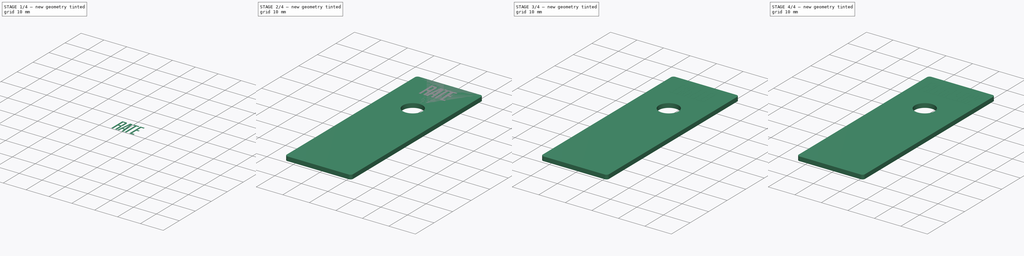
[diagram: build sequence overview — one tinted view per stage of 4, left to right]
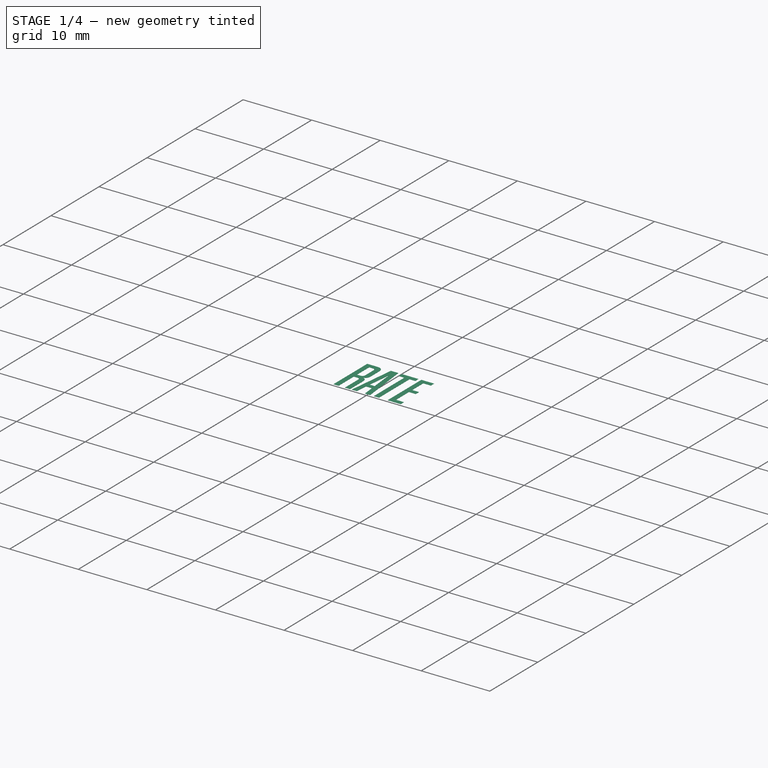
[diagram: stage 1 of 4 — iso view after this stage's code; geometry added in this stage tinted green]
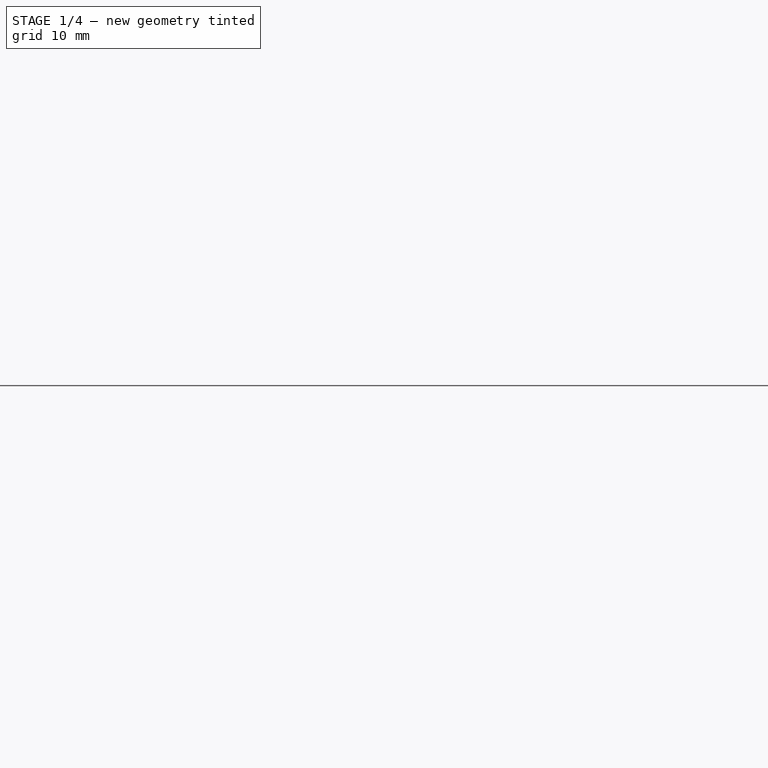
[diagram: stage 1 of 4 — front view after this stage's code; geometry added in this stage tinted green]
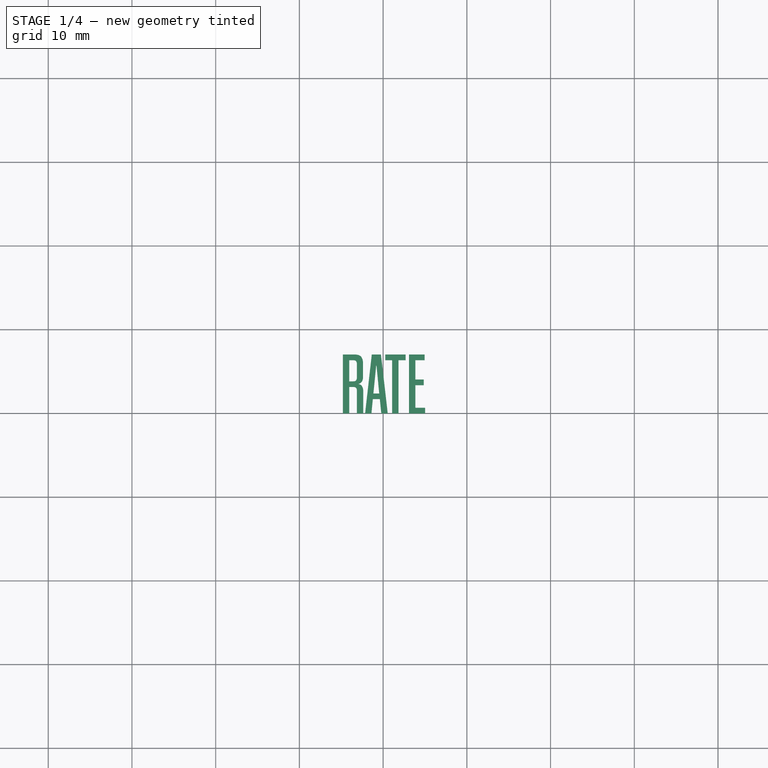
[diagram: stage 1 of 4 — top view after this stage's code; geometry added in this stage tinted green]
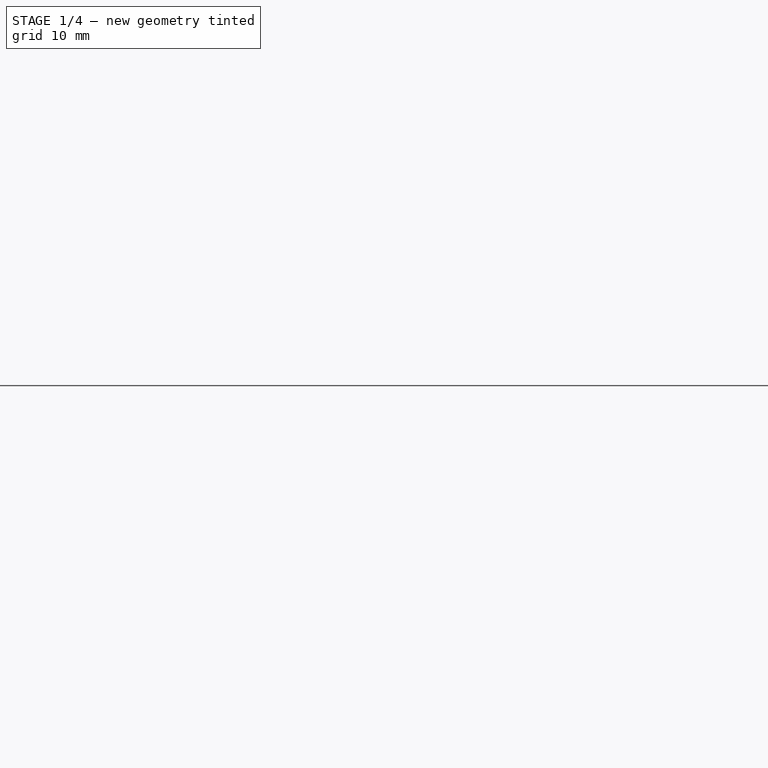
[diagram: stage 1 of 4 — right view after this stage's code; geometry added in this stage tinted green]
FCSTD DOCUMENT  (FreeCAD 0.18R16131 (Git))
Label: #XXX-XXX Potentiometer Label PCB
License: All rights reserved
LicenseURL: http://en.wikipedia.org/wiki/All_rights_reserved
objects: Sketcher::SketchObject×3, PartDesign::Pad×3, Part::Part2DObjectPython×3, Part::Extrusion×3, Part::MultiFuse×3
note: 18 computed .brp shape members not serialized (recipe doc carries the construction recipe); baked Part::Feature solids carry a one-line shape summary decoded from their .brp

FEATURE [Sketcher::SketchObject] Sketch002
  MapMode = 5
  sketch-geometry (9):
    g0: LineSegment StartX=-11.5 StartY=20 StartZ=0 EndX=11.5 EndY=20 EndZ=0
    g1: LineSegment StartX=12.5 StartY=19 StartZ=0 EndX=12.5 EndY=-50 EndZ=0
    g2: LineSegment StartX=11.5 StartY=-51 StartZ=0 EndX=-11.5 EndY=-51 EndZ=0
    g3: LineSegment StartX=-12.5 StartY=-50 StartZ=0 EndX=-12.5 EndY=19 EndZ=0
    g4: ArcOfCircle CenterX=-11.5 CenterY=19 CenterZ=0 NormalX=0 NormalY=0 NormalZ=1 AngleXU=0 Radius=1 StartAngle=1.5708 EndAngle=3.14159
    g5: ArcOfCircle CenterX=11.5 CenterY=19 CenterZ=0 NormalX=0 NormalY=0 NormalZ=1 AngleXU=0 Radius=1 StartAngle=1.6e-15 EndAngle=1.5708
    g6: ArcOfCircle CenterX=-11.5 CenterY=-50 CenterZ=0 NormalX=0 NormalY=0 NormalZ=1 AngleXU=0 Radius=1 StartAngle=3.14159 EndAngle=4.71239
    g7: ArcOfCircle CenterX=11.5 CenterY=-50 CenterZ=0 NormalX=0 NormalY=0 NormalZ=1 AngleXU=0 Radius=1 StartAngle=4.71239 EndAngle=6.28319
    g8: Circle CenterX=0 CenterY=0 CenterZ=0 NormalX=0 NormalY=0 NormalZ=1 AngleXU=0 Radius=3.75
  constraints (21):
    c: Horizontal(g2)
    c: Vertical(g1)
    c: Vertical(g3)
    c: Tangent(g0,g4) = 1.5708
    c: Tangent(g3,g4) = 1.5708
    c: Tangent(g0,g5) = 1.5708
    c: Tangent(g1,g5) = 1.5708
    c: Tangent(g2,g6) = 1.5708
    c: Tangent(g3,g6) = 1.5708
    c: Tangent(g1,g7) = 1.5708
    c: Tangent(g2,g7) = 1.5708
    c: Equal(g7,g6)
    c: Equal(g6,g5)
    c: Equal(g5,g4)
    c: Symmetric(g0,g0,g-2)
    c: DistanceY(g-1,g0) = 20
    c: DistanceX(g3,g1) = 25
    c: DistanceY(g3,g-1) = 50
    c: Radius(g6) = 1
    c: Coincident(g8,g-1)
    c: Radius(g8) = 3.75
FEATURE [PartDesign::Pad] Pad002
  Length = 1.6
  Length2 = 100
  Profile = -> Sketch002
  Type = 0
FEATURE [Part::Part2DObjectPython] ShapeString002  # Draft 2D object (typed FeaturePython)
  AttachmentOffset = pos=(-5,10,0) rot=(0,0,1;0rad)
  FontFile = <path> - Projects/Projects - FreeCad/FreeCad - Fonts/coolvetica compressed rg.ttf
  MapMode = 5
  Placement = pos=(-5,10,1.6) rot=(0,0,1;0rad)
  Size = 4
  String = RATE
  Support = -> [Pad002]
  Tracking = 0
FEATURE [Part::Extrusion] Extrude002
  Base = -> ShapeString002
  Dir = (0,0,1)
  DirMode = 2
  FaceMakerClass = Part::FaceMakerBullseye
  LengthFwd = 0.01
  LengthRev = 0
  Solid = false
  Symmetric = false
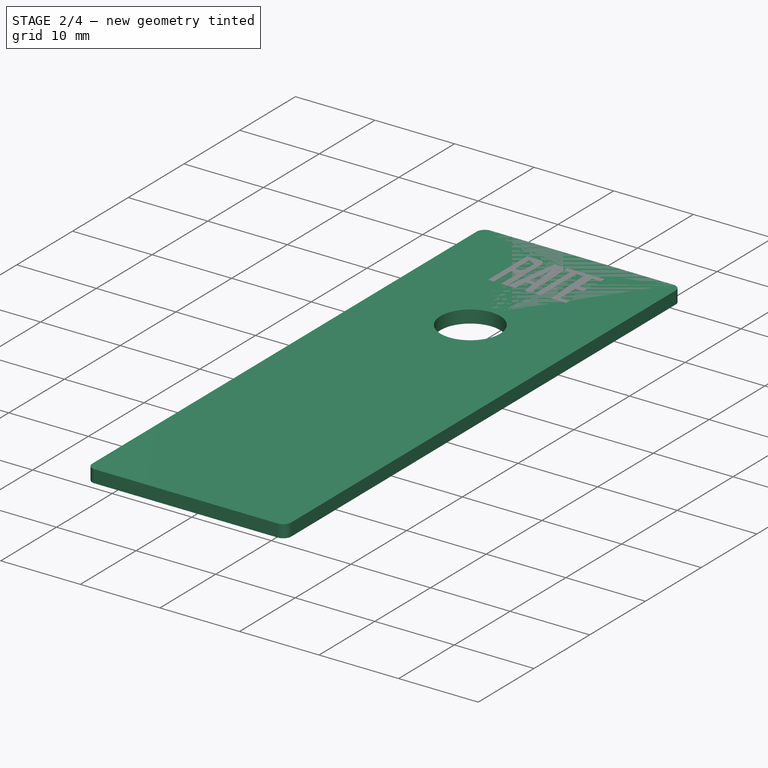
[diagram: stage 2 of 4 — iso view after this stage's code; geometry added in this stage tinted green]
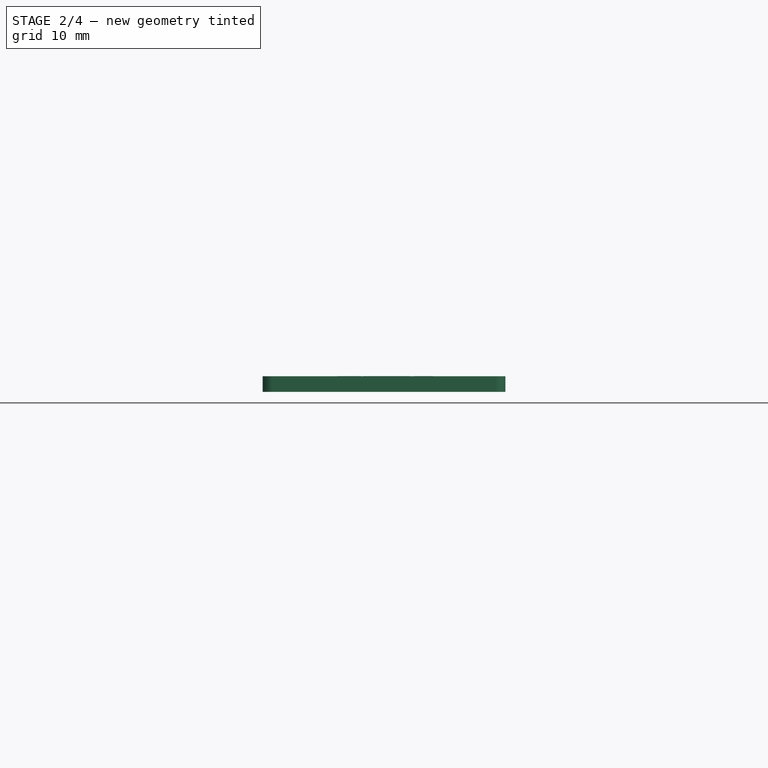
[diagram: stage 2 of 4 — front view after this stage's code; geometry added in this stage tinted green]
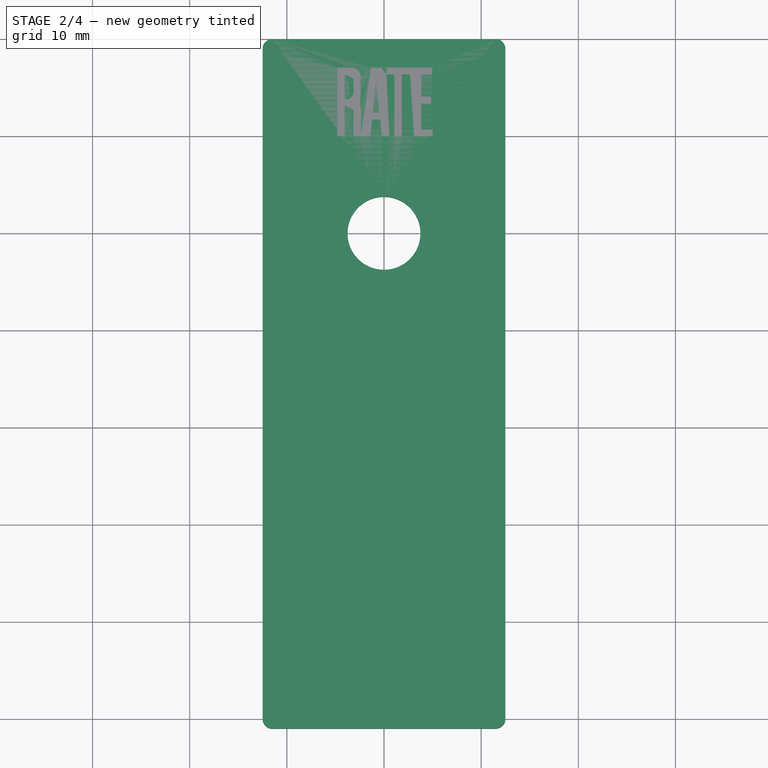
[diagram: stage 2 of 4 — top view after this stage's code; geometry added in this stage tinted green]
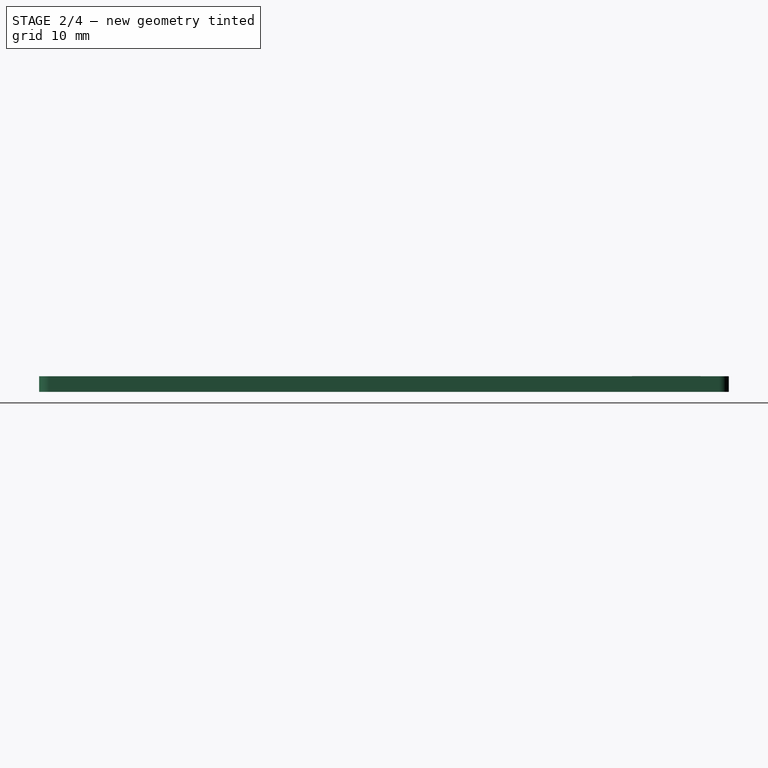
[diagram: stage 2 of 4 — right view after this stage's code; geometry added in this stage tinted green]
FEATURE [Sketcher::SketchObject] Sketch001
  MapMode = 5
  sketch-geometry (9):
    g0: LineSegment StartX=-11.5 StartY=20 StartZ=0 EndX=11.5 EndY=20 EndZ=0
    g1: LineSegment StartX=12.5 StartY=19 StartZ=0 EndX=12.5 EndY=-50 EndZ=0
    g2: LineSegment StartX=11.5 StartY=-51 StartZ=0 EndX=-11.5 EndY=-51 EndZ=0
    g3: LineSegment StartX=-12.5 StartY=-50 StartZ=0 EndX=-12.5 EndY=19 EndZ=0
    g4: ArcOfCircle CenterX=-11.5 CenterY=19 CenterZ=0 NormalX=0 NormalY=0 NormalZ=1 AngleXU=0 Radius=1 StartAngle=1.5708 EndAngle=3.14159
    g5: ArcOfCircle CenterX=11.5 CenterY=19 CenterZ=0 NormalX=0 NormalY=0 NormalZ=1 AngleXU=0 Radius=1 StartAngle=1.6e-15 EndAngle=1.5708
    g6: ArcOfCircle CenterX=-11.5 CenterY=-50 CenterZ=0 NormalX=0 NormalY=0 NormalZ=1 AngleXU=0 Radius=1 StartAngle=3.14159 EndAngle=4.71239
    g7: ArcOfCircle CenterX=11.5 CenterY=-50 CenterZ=0 NormalX=0 NormalY=0 NormalZ=1 AngleXU=0 Radius=1 StartAngle=4.71239 EndAngle=6.28319
    g8: Circle CenterX=0 CenterY=0 CenterZ=0 NormalX=0 NormalY=0 NormalZ=1 AngleXU=0 Radius=3.75
  constraints (21):
    c: Horizontal(g2)
    c: Vertical(g1)
    c: Vertical(g3)
    c: Tangent(g0,g4) = 1.5708
    c: Tangent(g3,g4) = 1.5708
    c: Tangent(g0,g5) = 1.5708
    c: Tangent(g1,g5) = 1.5708
    c: Tangent(g2,g6) = 1.5708
    c: Tangent(g3,g6) = 1.5708
    c: Tangent(g1,g7) = 1.5708
    c: Tangent(g2,g7) = 1.5708
    c: Equal(g7,g6)
    c: Equal(g6,g5)
    c: Equal(g5,g4)
    c: Symmetric(g0,g0,g-2)
    c: DistanceY(g-1,g0) = 20
    c: DistanceX(g3,g1) = 25
    c: DistanceY(g3,g-1) = 50
    c: Radius(g6) = 1
    c: Coincident(g8,g-1)
    c: Radius(g8) = 3.75
FEATURE [PartDesign::Pad] Pad001
  Length = 1.6
  Length2 = 100
  Profile = -> Sketch001
  Type = 0
FEATURE [Part::MultiFuse] Fusion002  label="Label Rate"
  Shapes = -> [Extrude002,Pad002]
note: 3 file-system paths scrubbed to <path> (originals preserved in the JSON sidecar)
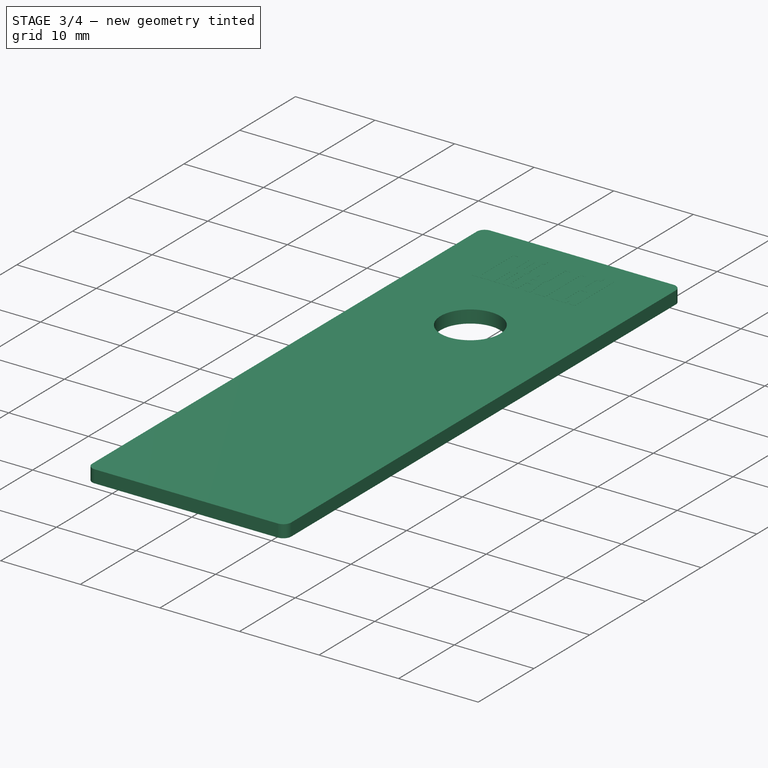
[diagram: stage 3 of 4 — iso view after this stage's code; geometry added in this stage tinted green]
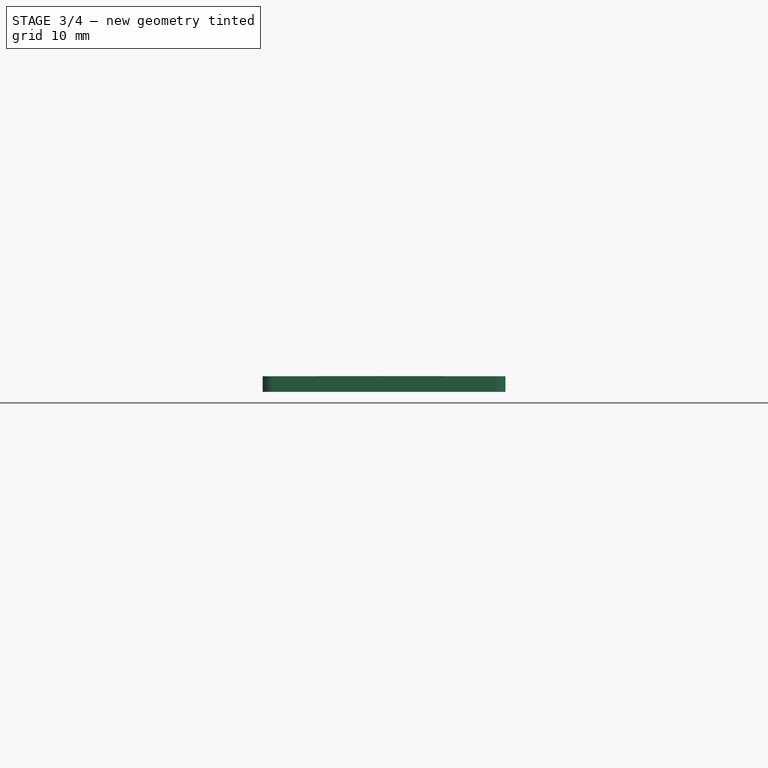
[diagram: stage 3 of 4 — front view after this stage's code; geometry added in this stage tinted green]
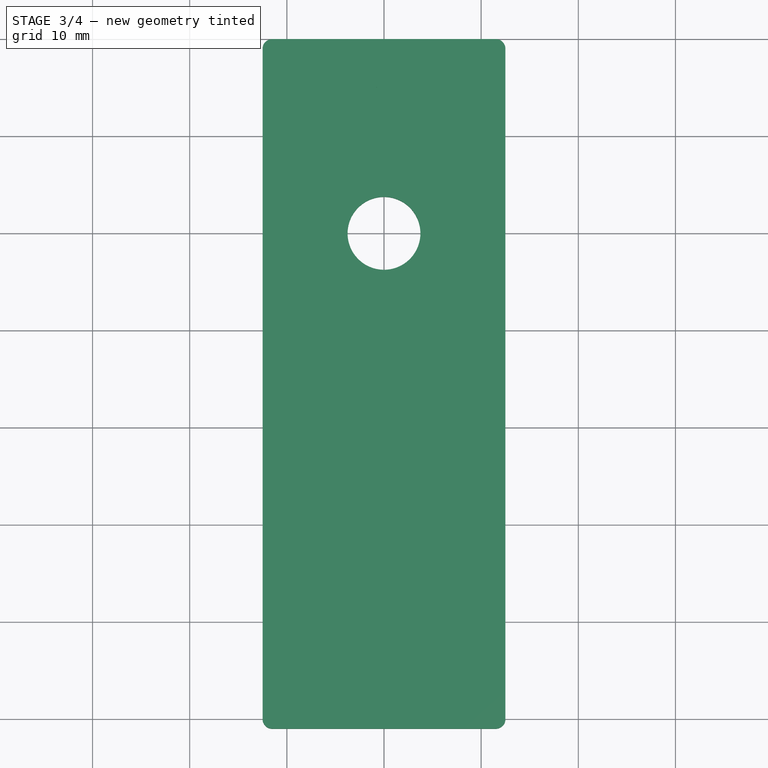
[diagram: stage 3 of 4 — top view after this stage's code; geometry added in this stage tinted green]
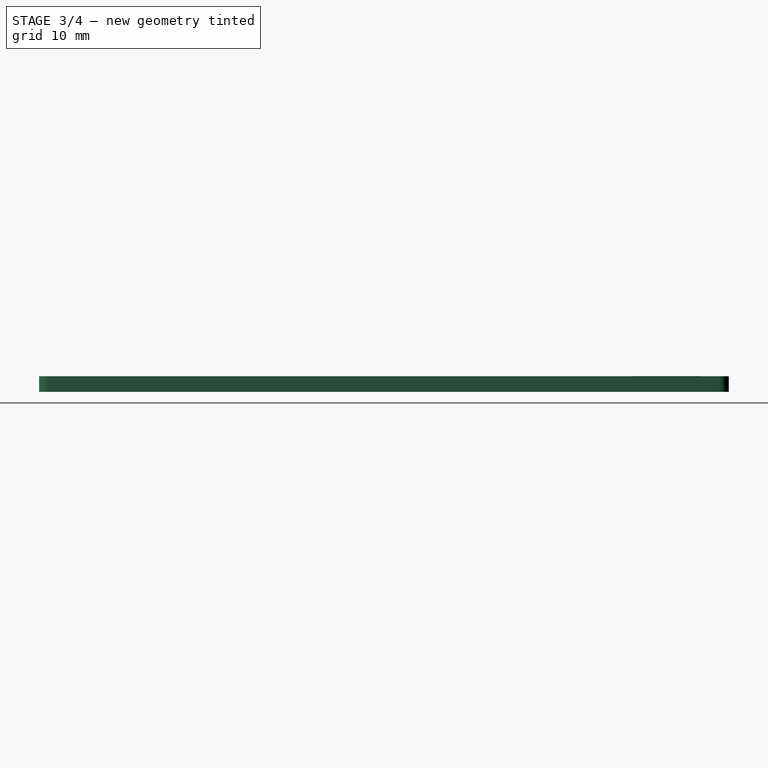
[diagram: stage 3 of 4 — right view after this stage's code; geometry added in this stage tinted green]
FEATURE [Sketcher::SketchObject] Sketch
  MapMode = 5
  sketch-geometry (9):
    g0: LineSegment StartX=-11.5 StartY=20 StartZ=0 EndX=11.5 EndY=20 EndZ=0
    g1: LineSegment StartX=12.5 StartY=19 StartZ=0 EndX=12.5 EndY=-50 EndZ=0
    g2: LineSegment StartX=11.5 StartY=-51 StartZ=0 EndX=-11.5 EndY=-51 EndZ=0
    g3: LineSegment StartX=-12.5 StartY=-50 StartZ=0 EndX=-12.5 EndY=19 EndZ=0
    g4: ArcOfCircle CenterX=-11.5 CenterY=19 CenterZ=0 NormalX=0 NormalY=0 NormalZ=1 AngleXU=0 Radius=1 StartAngle=1.5708 EndAngle=3.14159
    g5: ArcOfCircle CenterX=11.5 CenterY=19 CenterZ=0 NormalX=0 NormalY=0 NormalZ=1 AngleXU=0 Radius=1 StartAngle=1.6e-15 EndAngle=1.5708
    g6: ArcOfCircle CenterX=-11.5 CenterY=-50 CenterZ=0 NormalX=0 NormalY=0 NormalZ=1 AngleXU=0 Radius=1 StartAngle=3.14159 EndAngle=4.71239
    g7: ArcOfCircle CenterX=11.5 CenterY=-50 CenterZ=0 NormalX=0 NormalY=0 NormalZ=1 AngleXU=0 Radius=1 StartAngle=4.71239 EndAngle=6.28319
    g8: Circle CenterX=0 CenterY=0 CenterZ=0 NormalX=0 NormalY=0 NormalZ=1 AngleXU=0 Radius=3.75
  constraints (21):
    c: Horizontal(g2)
    c: Vertical(g1)
    c: Vertical(g3)
    c: Tangent(g0,g4) = 1.5708
    c: Tangent(g3,g4) = 1.5708
    c: Tangent(g0,g5) = 1.5708
    c: Tangent(g1,g5) = 1.5708
    c: Tangent(g2,g6) = 1.5708
    c: Tangent(g3,g6) = 1.5708
    c: Tangent(g1,g7) = 1.5708
    c: Tangent(g2,g7) = 1.5708
    c: Equal(g7,g6)
    c: Equal(g6,g5)
    c: Equal(g5,g4)
    c: Symmetric(g0,g0,g-2)
    c: DistanceY(g-1,g0) = 20
    c: DistanceX(g3,g1) = 25
    c: DistanceY(g3,g-1) = 50
    c: Radius(g6) = 1
    c: Coincident(g8,g-1)
    c: Radius(g8) = 3.75
FEATURE [PartDesign::Pad] Pad
  Length = 1.6
  Length2 = 100
  Profile = -> Sketch
  Type = 0
FEATURE [Part::Part2DObjectPython] ShapeString001  # Draft 2D object (typed FeaturePython)
  AttachmentOffset = pos=(-7,10,0) rot=(0,0,1;0rad)
  FontFile = <path> - Projects/Projects - FreeCad/FreeCad - Fonts/coolvetica compressed rg.ttf
  MapMode = 5
  Placement = pos=(-7,10,1.6) rot=(0,0,1;0rad)
  Size = 4
  String = DEPTH
  Support = -> [Pad001]
  Tracking = 0
FEATURE [Part::Extrusion] Extrude001
  Base = -> ShapeString001
  Dir = (0,0,1)
  DirMode = 2
  FaceMakerClass = Part::FaceMakerBullseye
  LengthFwd = 0.01
  LengthRev = 0
  Solid = false
  Symmetric = false
FEATURE [Part::MultiFuse] Fusion001  label="Label Depth"
  Shapes = -> [Extrude001,Pad001]
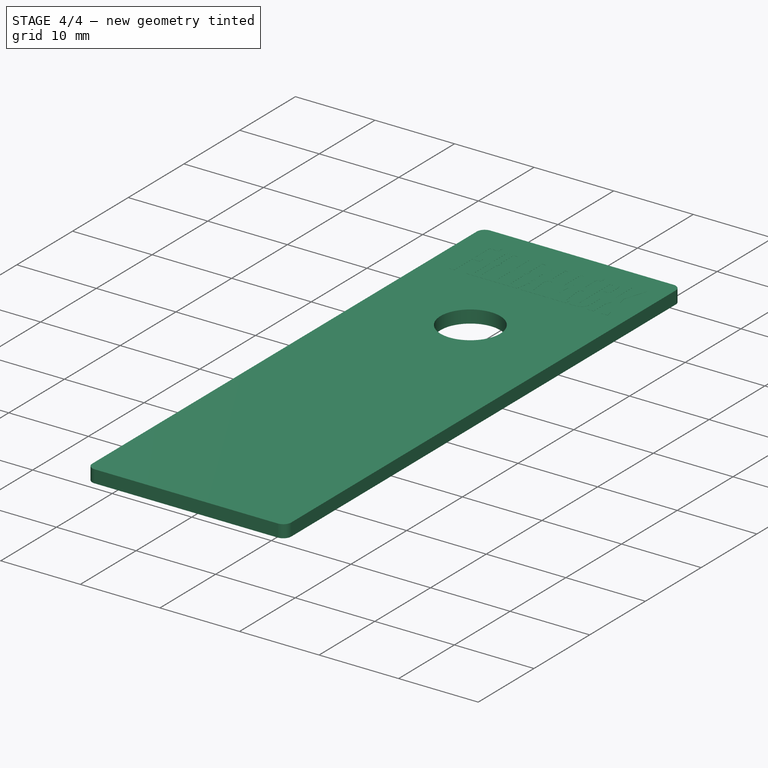
[diagram: stage 4 of 4 — iso view after this stage's code; geometry added in this stage tinted green]
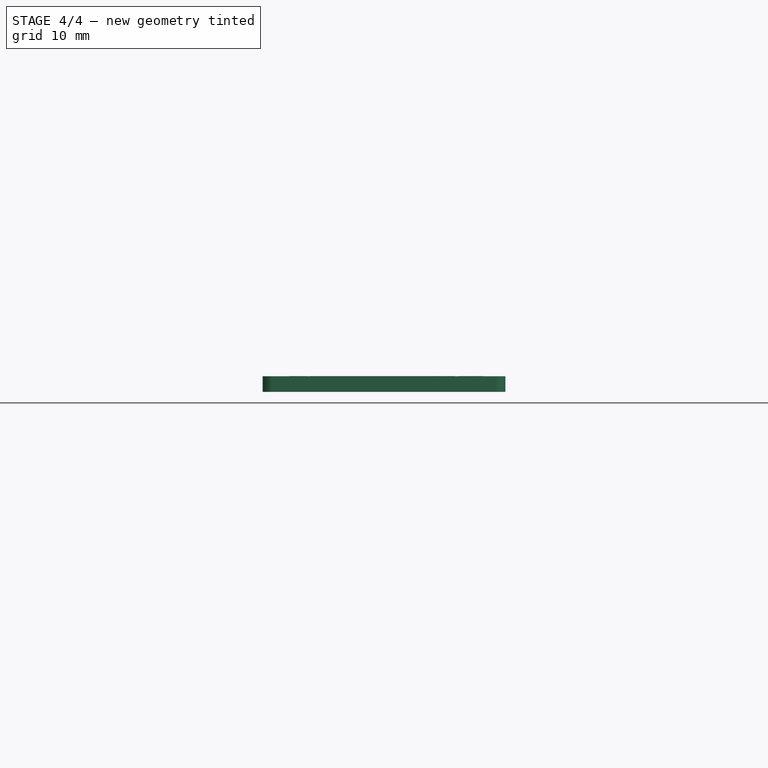
[diagram: stage 4 of 4 — front view after this stage's code; geometry added in this stage tinted green]
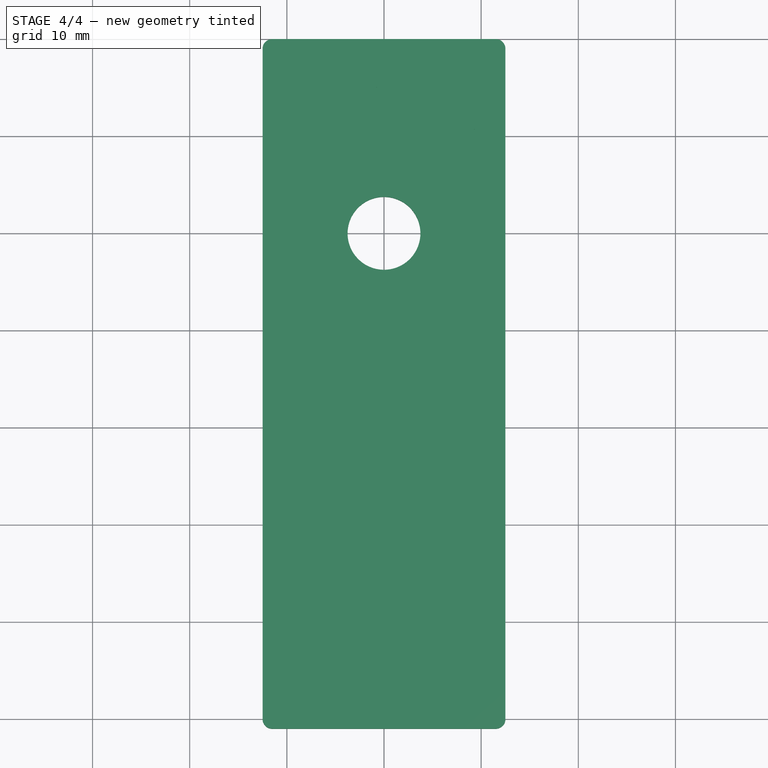
[diagram: stage 4 of 4 — top view after this stage's code; geometry added in this stage tinted green]
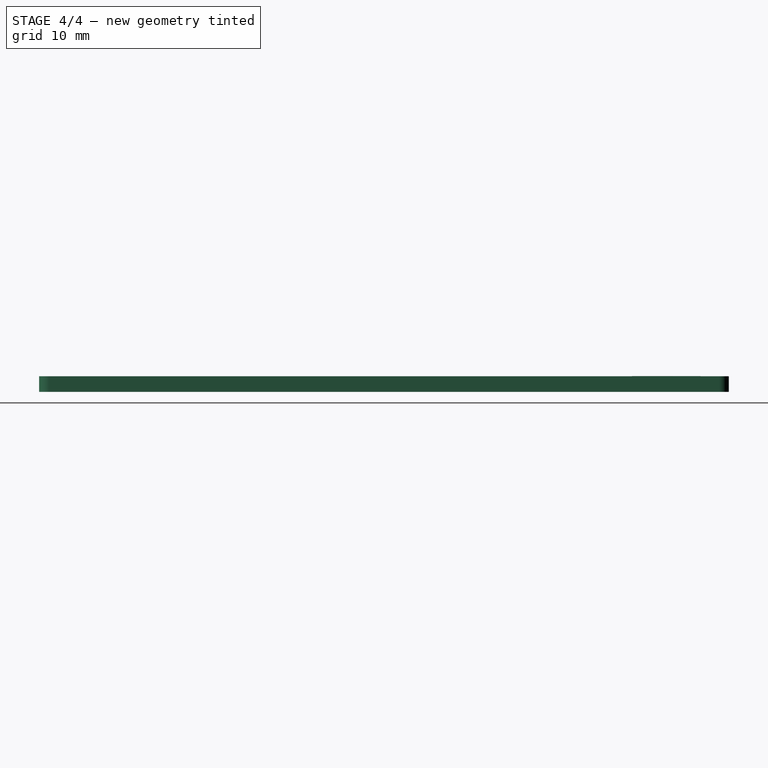
[diagram: stage 4 of 4 — right view after this stage's code; geometry added in this stage tinted green]
FEATURE [Part::Part2DObjectPython] ShapeString  # Draft 2D object (typed FeaturePython)
  AttachmentOffset = pos=(-10,10,0) rot=(0,0,1;0rad)
  FontFile = <path> - Projects/Projects - FreeCad/FreeCad - Fonts/coolvetica compressed rg.ttf
  MapMode = 5
  Placement = pos=(-10,10,1.6) rot=(0,0,1;0rad)
  Size = 4
  String = FEEDBACK
  Support = -> [Pad]
  Tracking = 0
FEATURE [Part::Extrusion] Extrude
  Base = -> ShapeString
  Dir = (0,0,1)
  DirMode = 2
  FaceMakerClass = Part::FaceMakerBullseye
  LengthFwd = 0.01
  LengthRev = 0
  Solid = false
  Symmetric = false
FEATURE [Part::MultiFuse] Fusion  label="Label Feedback"
  Shapes = -> [Extrude,Pad]
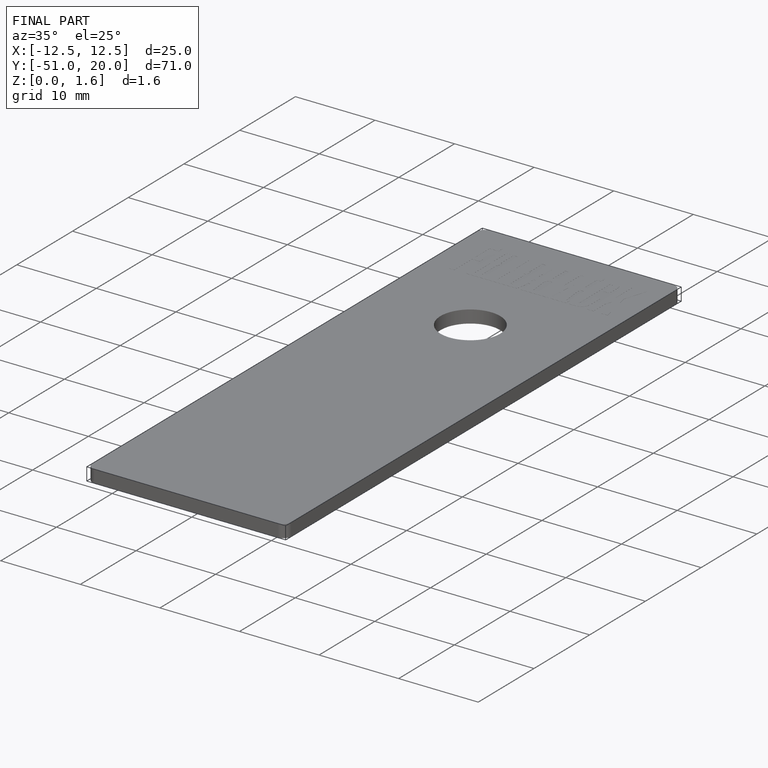
[diagram: finished part — iso view with bounding-box wireframe]
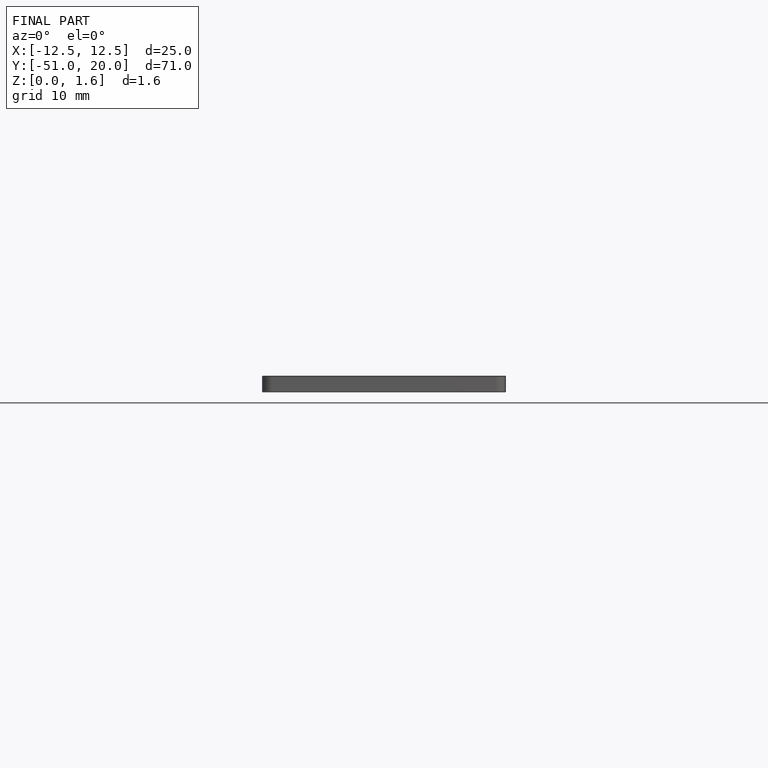
[diagram: finished part — front view with bounding-box wireframe]
